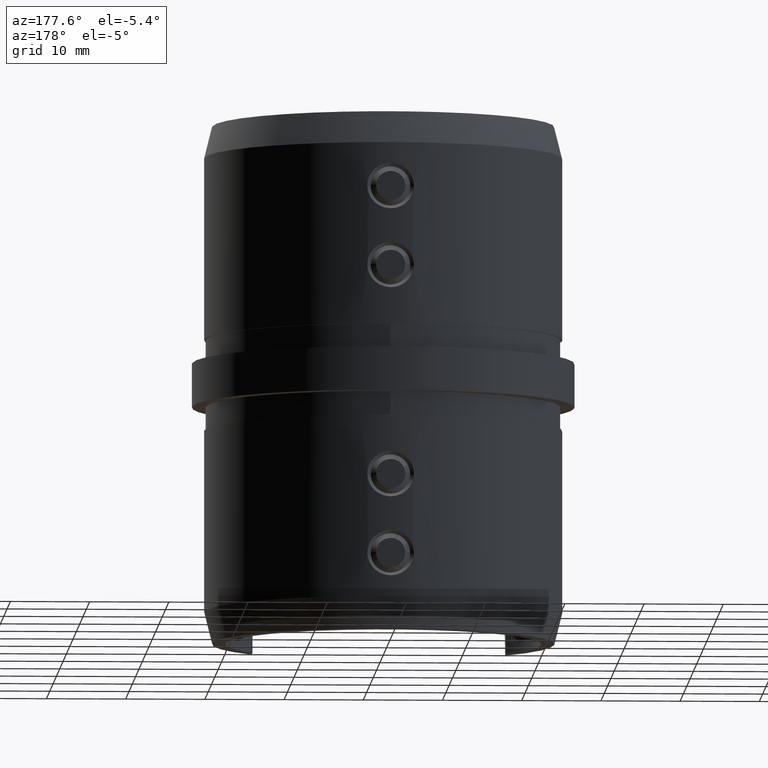
[diagram: clean part render]
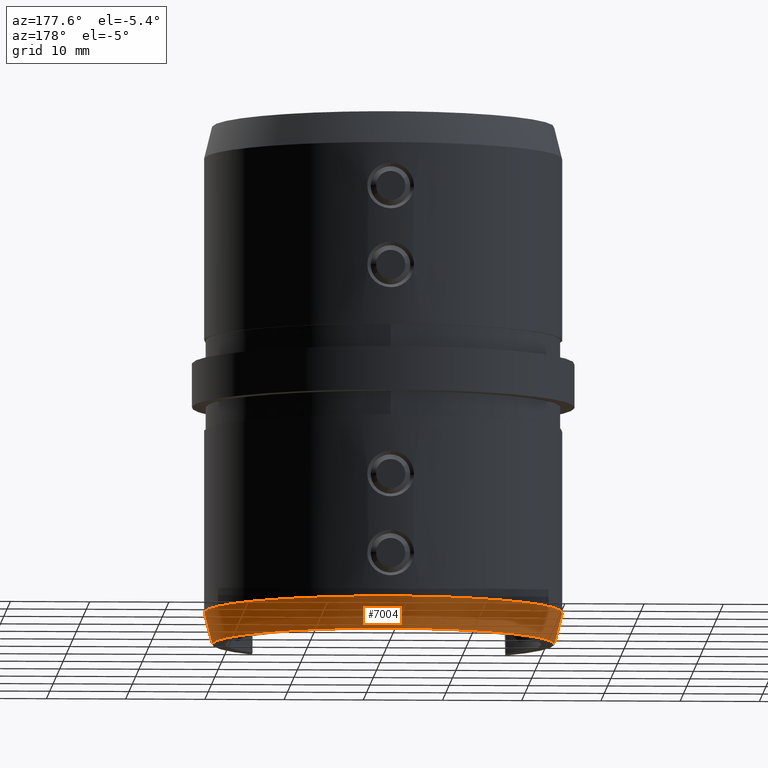
[diagram: same view with one face highlighted and labeled with its STEP entity id]
A machine part, auxiliary view. The second image highlights one B-rep face of the part: STEP entity #7004.
In plain terms, the highlighted conical surface has half-angle 14.036 deg.
Its self-contained STEP definition (entity closure, byte-faithful):
#685 = VERTEX_POINT ( 'NONE', #15142 ) ;
#1462 = CARTESIAN_POINT ( 'NONE',  ( -21.59999999999998700, 0.0000000000000000000, -32.75000000000000000 ) ) ;
#2698 = DIRECTION ( 'NONE',  ( -1.000000000000000000, 0.0000000000000000000, 0.0000000000000000000 ) ) ;
#2731 = DIRECTION ( 'NONE',  ( 1.000000000000000000, 0.0000000000000000000, 0.0000000000000000000 ) ) ;
#4090 = LINE ( 'NONE', #16909, #20781 ) ;
#4402 = CARTESIAN_POINT ( 'NONE',  ( 0.0000000000000000000, 0.0000000000000000000, -32.75000000000000000 ) ) ;
#4461 = CARTESIAN_POINT ( 'NONE',  ( -21.59999999999998700, 0.0000000000000000000, -32.75000000000000000 ) ) ;
#4680 = FACE_OUTER_BOUND ( 'NONE', #19797, .T. ) ;
#4698 = AXIS2_PLACEMENT_3D ( 'NONE', #19325, #14458, #19186 ) ;
#5184 = EDGE_CURVE ( 'NONE', #13695, #685, #14822, .T. ) ;
#5673 = VERTEX_POINT ( 'NONE', #9227 ) ;
#5981 = DIRECTION ( 'NONE',  ( -0.0000000000000000000, -0.0000000000000000000, 1.000000000000000000 ) ) ;
#6820 = AXIS2_PLACEMENT_3D ( 'NONE', #4402, #19026, #2698 ) ;
#7004 = ADVANCED_FACE ( 'NONE', ( #4680 ), #16571, .T. ) ;
#9180 = EDGE_CURVE ( 'NONE', #5673, #13695, #19082, .T. ) ;
#9227 = CARTESIAN_POINT ( 'NONE',  ( 21.59999999999998700, -2.706469426115650200E-015, -32.75000000000000000 ) ) ;
#9503 = CARTESIAN_POINT ( 'NONE',  ( 0.0000000000000000000, 0.0000000000000000000, -32.75000000000000000 ) ) ;
#10261 = CARTESIAN_POINT ( 'NONE',  ( 22.60000000000000100, -2.767701766073018500E-015, -28.74999999999990100 ) ) ;
#10508 = VECTOR ( 'NONE', #20636, 1000.000000000000000 ) ;
#12613 = EDGE_CURVE ( 'NONE', #685, #19005, #18646, .T. ) ;
#13324 = AXIS2_PLACEMENT_3D ( 'NONE', #9503, #5981, #2731 ) ;
#13695 = VERTEX_POINT ( 'NONE', #4461 ) ;
#14458 = DIRECTION ( 'NONE',  ( 0.0000000000000000000, 0.0000000000000000000, -1.000000000000000000 ) ) ;
#14822 = LINE ( 'NONE', #1462, #10508 ) ;
#14978 = ORIENTED_EDGE ( 'NONE', *, *, #9180, .T. ) ;
#15142 = CARTESIAN_POINT ( 'NONE',  ( -22.60000000000000100, 0.0000000000000000000, -28.74999999999990100 ) ) ;
#15596 = ORIENTED_EDGE ( 'NONE', *, *, #18223, .F. ) ;
#16052 = ORIENTED_EDGE ( 'NONE', *, *, #12613, .T. ) ;
#16571 = CONICAL_SURFACE ( 'NONE', #6820, 21.59999999999998700, 0.2449786631268616700 ) ;
#16763 = ORIENTED_EDGE ( 'NONE', *, *, #5184, .T. ) ;
#16841 = DIRECTION ( 'NONE',  ( 0.2425356250363306100, -2.970204768799449200E-017, 0.9701425001453325400 ) ) ;
#16909 = CARTESIAN_POINT ( 'NONE',  ( 21.59999999999998700, -2.645237086158281400E-015, -32.75000000000000000 ) ) ;
#18223 = EDGE_CURVE ( 'NONE', #5673, #19005, #4090, .T. ) ;
#18646 = CIRCLE ( 'NONE', #4698, 22.60000000000000100 ) ;
#19005 = VERTEX_POINT ( 'NONE', #10261 ) ;
#19026 = DIRECTION ( 'NONE',  ( 0.0000000000000000000, 0.0000000000000000000, 1.000000000000000000 ) ) ;
#19082 = CIRCLE ( 'NONE', #13324, 21.59999999999998700 ) ;
#19186 = DIRECTION ( 'NONE',  ( 1.000000000000000000, 0.0000000000000000000, 0.0000000000000000000 ) ) ;
#19325 = CARTESIAN_POINT ( 'NONE',  ( 0.0000000000000000000, 0.0000000000000000000, -28.74999999999990100 ) ) ;
#19797 = EDGE_LOOP ( 'NONE', ( #15596, #14978, #16763, #16052 ) ) ;
#20636 = DIRECTION ( 'NONE',  ( -0.2425356250363306100, 0.0000000000000000000, 0.9701425001453325400 ) ) ;
#20781 = VECTOR ( 'NONE', #16841, 1000.000000000000000 ) ;